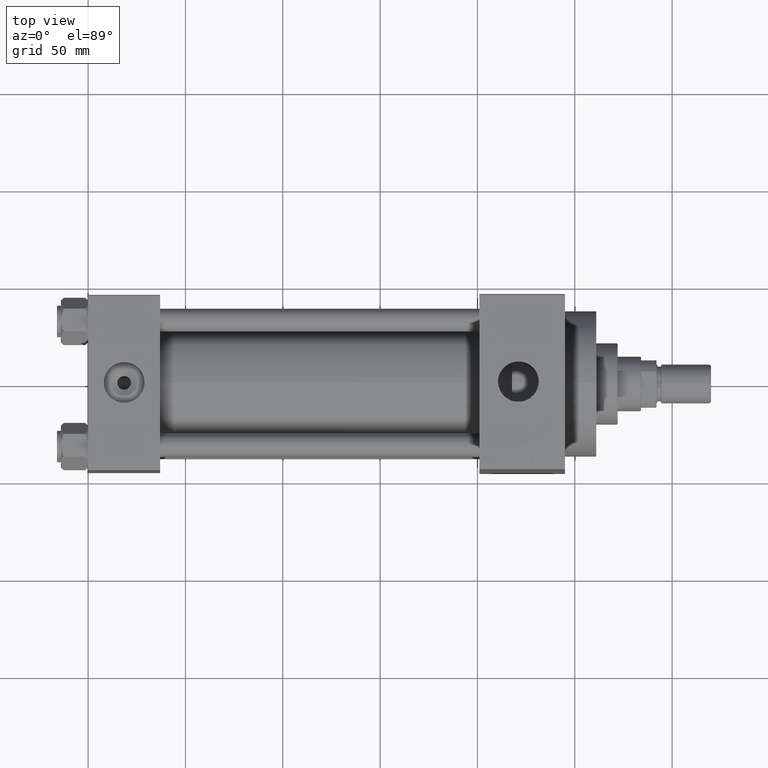
[diagram: clean part render]
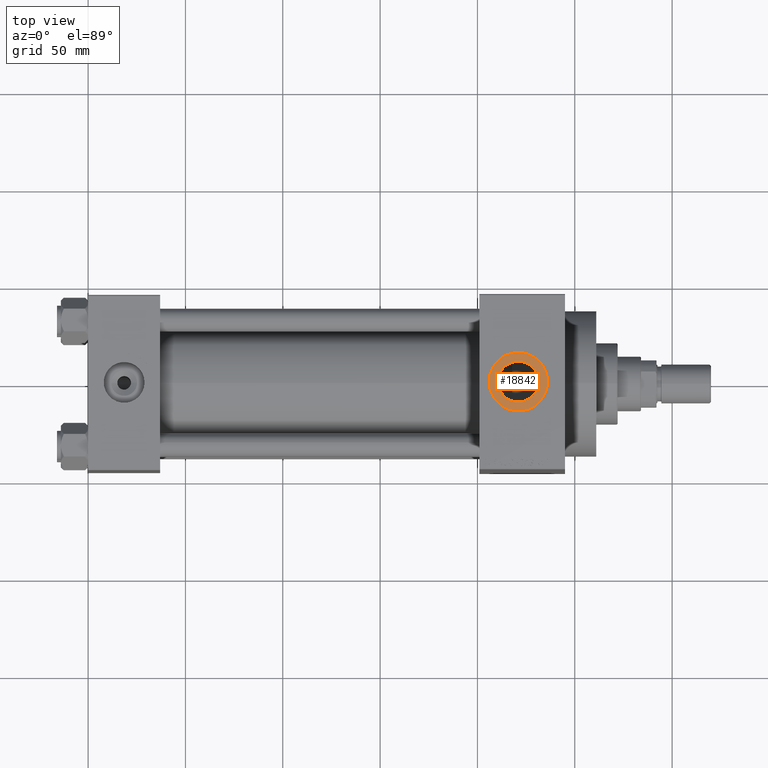
[diagram: same view with one face highlighted and labeled with its STEP entity id]
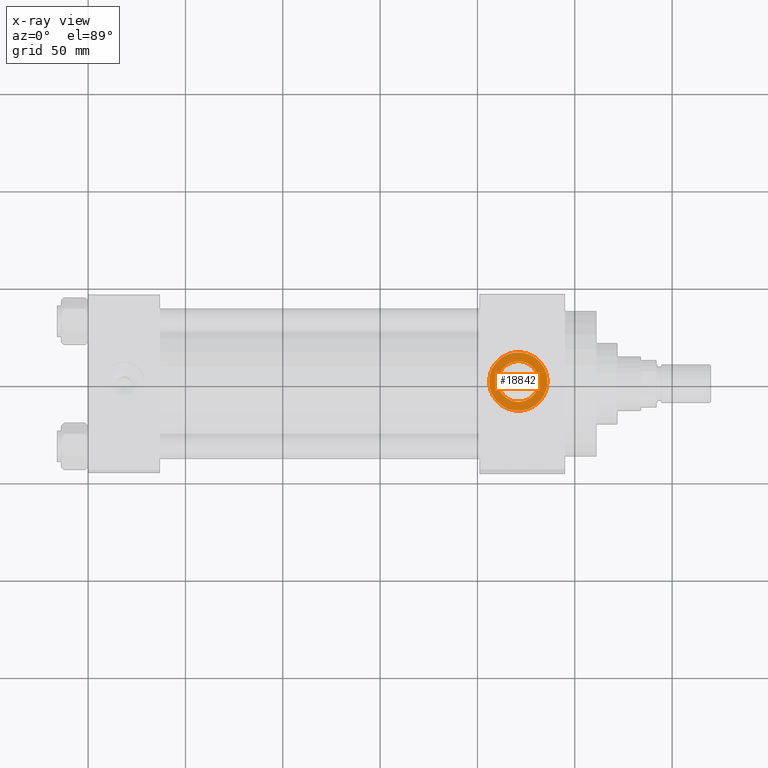
[diagram: x-ray of the same camera — body ghosted, the highlighted face saturated]
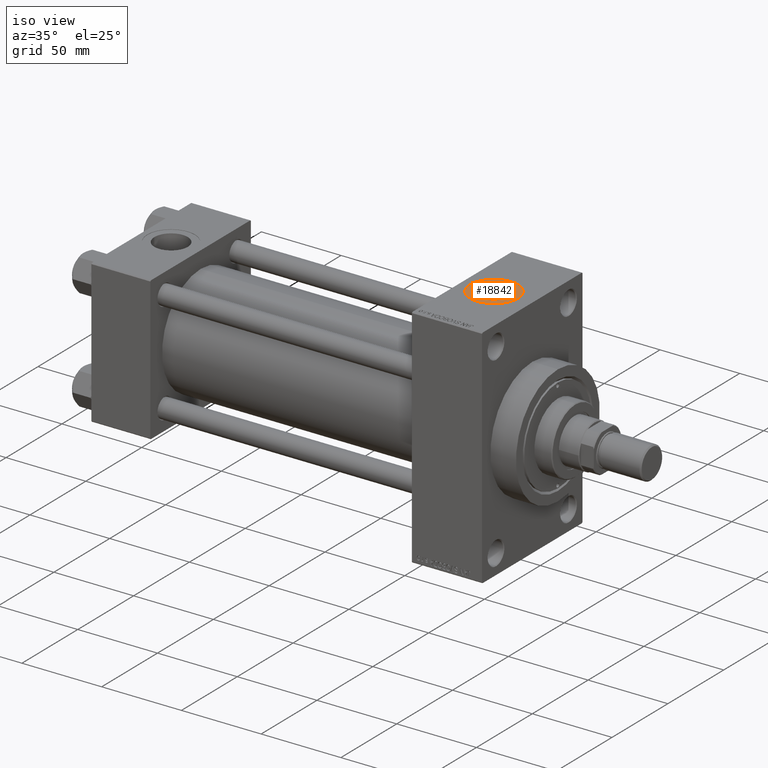
[diagram: same view with one face highlighted and labeled with its STEP entity id]
A machine part, top view. The second image highlights one B-rep face of the part: STEP entity #18842.
The next image is the same camera in x-ray: the body ghosted, the highlighted face saturated — about 0% of this face is hidden behind the body in this view.
A second angle (iso view) of the same face is appended — the face is thin or edge-on in the first view.
In plain terms, the highlighted planar face has unit normal (0, 0, 1).
Its self-contained STEP definition (entity closure, byte-faithful):
#11 = DIRECTION ( 'NONE',  ( 1.000000000000000000, 0.000000000000000000, 0.000000000000000000 ) ) ;
#60 = CARTESIAN_POINT ( 'NONE',  ( 210.5199999999999818, -1.094803260394251466E-14, 70.79999999999996874 ) ) ;
#446 = EDGE_CURVE ( 'NONE', #40464, #39984, #16036, .T. ) ;
#531 = DIRECTION ( 'NONE',  ( 1.000000000000000000, 0.000000000000000000, -0.000000000000000000 ) ) ;
#1299 = ORIENTED_EDGE ( 'NONE', *, *, #36144, .T. ) ;
#2205 = CIRCLE ( 'NONE', #47810, 10.47999999999998977 ) ;
#5773 = CARTESIAN_POINT ( 'NONE',  ( 236.0000000000000000, -1.094803260394251466E-14, 70.79999999999996874 ) ) ;
#7323 = FACE_BOUND ( 'NONE', #19090, .T. ) ;
#8317 = EDGE_CURVE ( 'NONE', #39984, #40464, #30858, .T. ) ;
#11100 = CIRCLE ( 'NONE', #29666, 10.47999999999998977 ) ;
#11152 = DIRECTION ( 'NONE',  ( 0.000000000000000000, 0.000000000000000000, 1.000000000000000000 ) ) ;
#11893 = DIRECTION ( 'NONE',  ( 1.000000000000000000, 0.000000000000000000, 0.000000000000000000 ) ) ;
#12752 = ORIENTED_EDGE ( 'NONE', *, *, #8317, .T. ) ;
#13024 = CARTESIAN_POINT ( 'NONE',  ( 231.4799999999999613, -9.664602758436089169E-15, 70.79999999999996874 ) ) ;
#14316 = CARTESIAN_POINT ( 'NONE',  ( 220.9999999999999716, -1.094803260394251466E-14, 70.79999999999996874 ) ) ;
#16036 = CIRCLE ( 'NONE', #45390, 15.00000000000001421 ) ;
#17226 = CARTESIAN_POINT ( 'NONE',  ( 220.9999999999999716, -1.094803260394251466E-14, 70.79999999999996874 ) ) ;
#17486 = VERTEX_POINT ( 'NONE', #13024 ) ;
#18842 = ADVANCED_FACE ( 'NONE', ( #7323, #25731 ), #40488, .T. ) ;
#19090 = EDGE_LOOP ( 'NONE', ( #28158, #1299 ) ) ;
#19922 = EDGE_CURVE ( 'NONE', #45475, #17486, #2205, .T. ) ;
#25731 = FACE_OUTER_BOUND ( 'NONE', #36917, .T. ) ;
#28158 = ORIENTED_EDGE ( 'NONE', *, *, #19922, .T. ) ;
#29666 = AXIS2_PLACEMENT_3D ( 'NONE', #36386, #34168, #11893 ) ;
#30858 = CIRCLE ( 'NONE', #37037, 15.00000000000001421 ) ;
#32348 = ORIENTED_EDGE ( 'NONE', *, *, #446, .T. ) ;
#34168 = DIRECTION ( 'NONE',  ( -0.000000000000000000, -0.000000000000000000, -1.000000000000000000 ) ) ;
#36144 = EDGE_CURVE ( 'NONE', #17486, #45475, #11100, .T. ) ;
#36386 = CARTESIAN_POINT ( 'NONE',  ( 220.9999999999999716, -1.094803260394251466E-14, 70.79999999999996874 ) ) ;
#36917 = EDGE_LOOP ( 'NONE', ( #12752, #32348 ) ) ;
#37037 = AXIS2_PLACEMENT_3D ( 'NONE', #45536, #38282, #37325 ) ;
#37325 = DIRECTION ( 'NONE',  ( 1.000000000000000000, 0.000000000000000000, 0.000000000000000000 ) ) ;
#38282 = DIRECTION ( 'NONE',  ( 0.000000000000000000, 0.000000000000000000, 1.000000000000000000 ) ) ;
#39015 = DIRECTION ( 'NONE',  ( 1.000000000000000000, 0.000000000000000000, 0.000000000000000000 ) ) ;
#39984 = VERTEX_POINT ( 'NONE', #5773 ) ;
#40464 = VERTEX_POINT ( 'NONE', #43458 ) ;
#40488 = PLANE ( 'NONE',  #45466 ) ;
#43458 = CARTESIAN_POINT ( 'NONE',  ( 205.9999999999999716, -9.111062405221479547E-15, 70.79999999999996874 ) ) ;
#44115 = CARTESIAN_POINT ( 'NONE',  ( 220.9999999999999716, -1.094803260394251466E-14, 70.79999999999996874 ) ) ;
#44579 = DIRECTION ( 'NONE',  ( 0.000000000000000000, 0.000000000000000000, 1.000000000000000000 ) ) ;
#45390 = AXIS2_PLACEMENT_3D ( 'NONE', #14316, #11152, #11 ) ;
#45466 = AXIS2_PLACEMENT_3D ( 'NONE', #44115, #44579, #531 ) ;
#45475 = VERTEX_POINT ( 'NONE', #60 ) ;
#45536 = CARTESIAN_POINT ( 'NONE',  ( 220.9999999999999716, -1.094803260394251466E-14, 70.79999999999996874 ) ) ;
#46983 = DIRECTION ( 'NONE',  ( -0.000000000000000000, -0.000000000000000000, -1.000000000000000000 ) ) ;
#47810 = AXIS2_PLACEMENT_3D ( 'NONE', #17226, #46983, #39015 ) ;